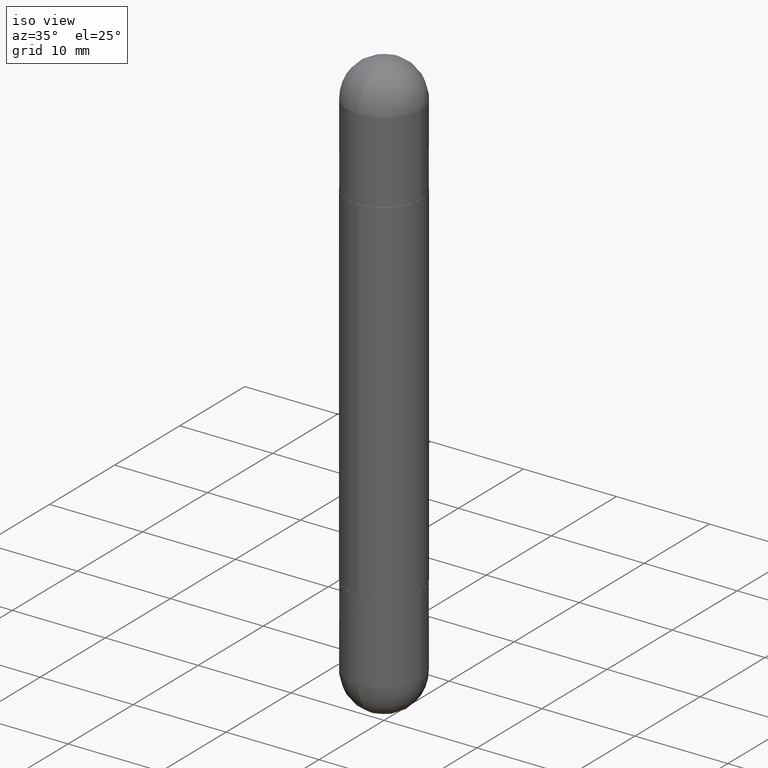
[diagram: clean part render]
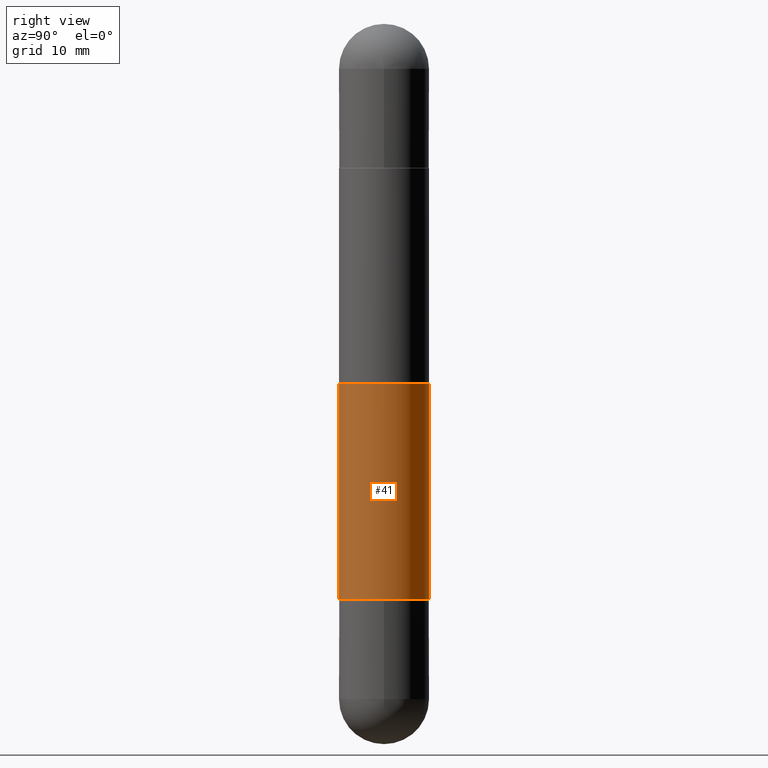
[diagram: tour spotlight — one face highlighted and labeled with its STEP entity id]
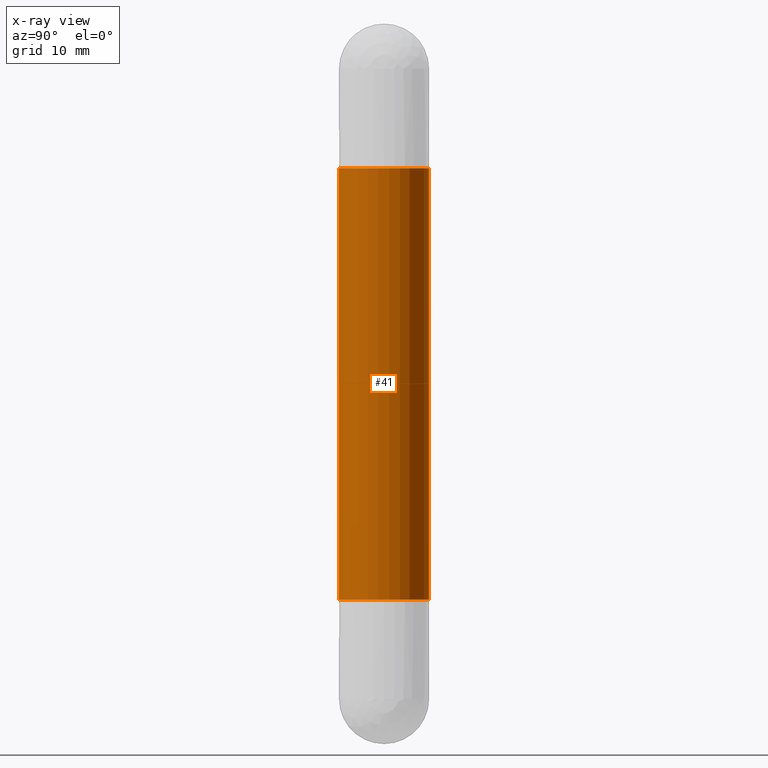
[diagram: x-ray of the same camera — body ghosted, this tour face saturated]
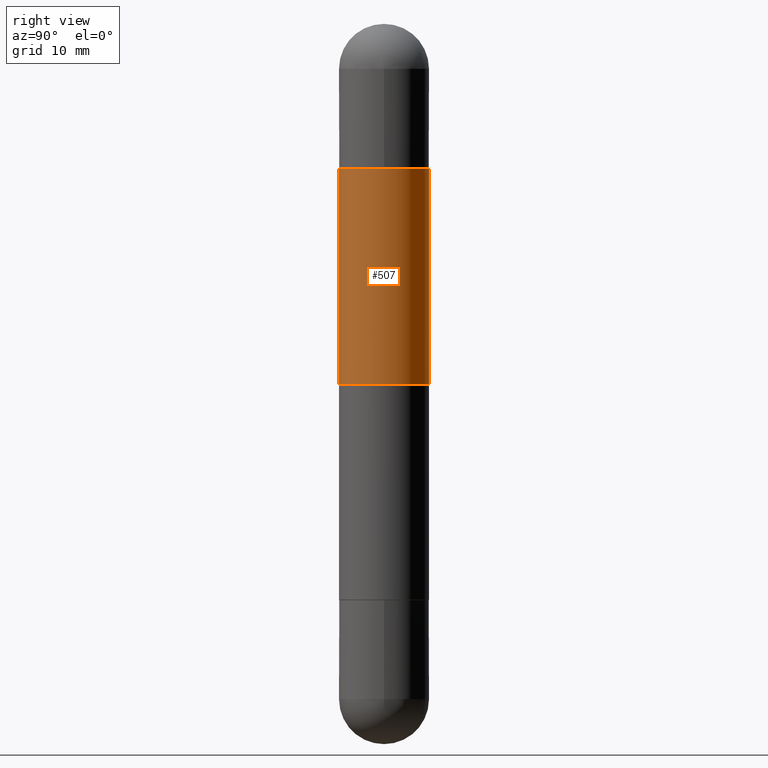
[diagram: tour spotlight — one face highlighted and labeled with its STEP entity id]
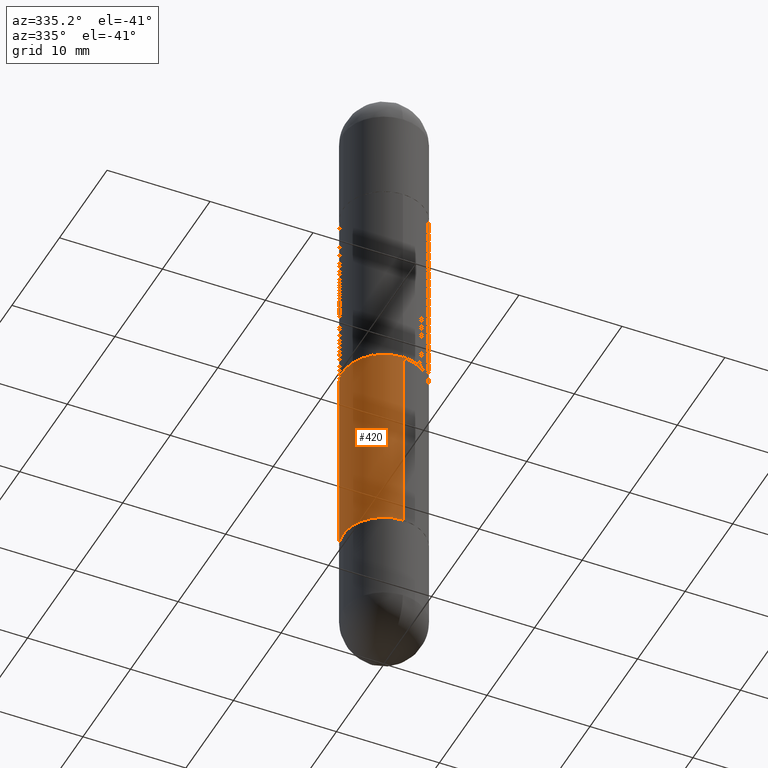
[diagram: tour spotlight — one face highlighted and labeled with its STEP entity id]
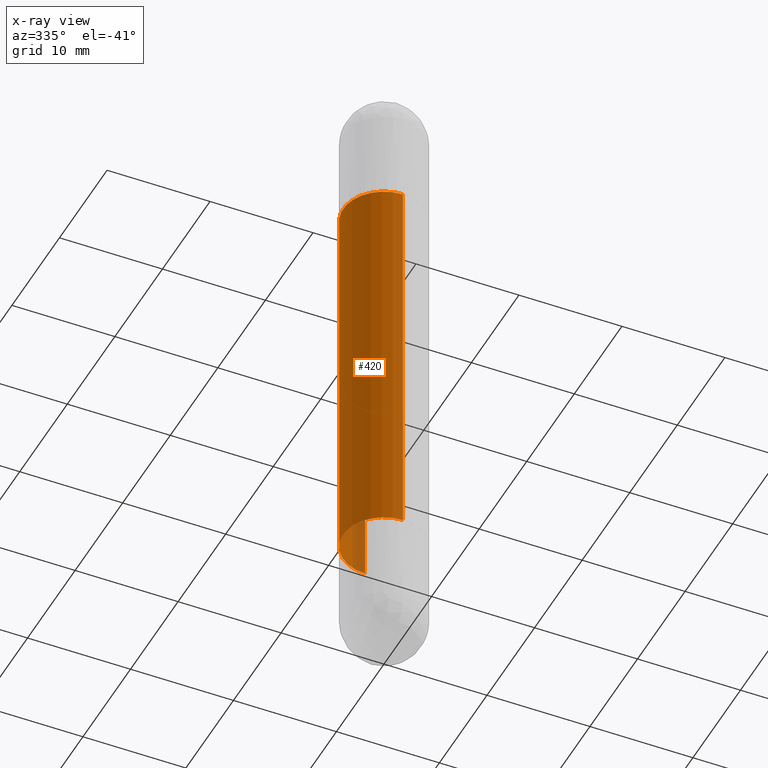
[diagram: x-ray of the same camera — body ghosted, this tour face saturated]
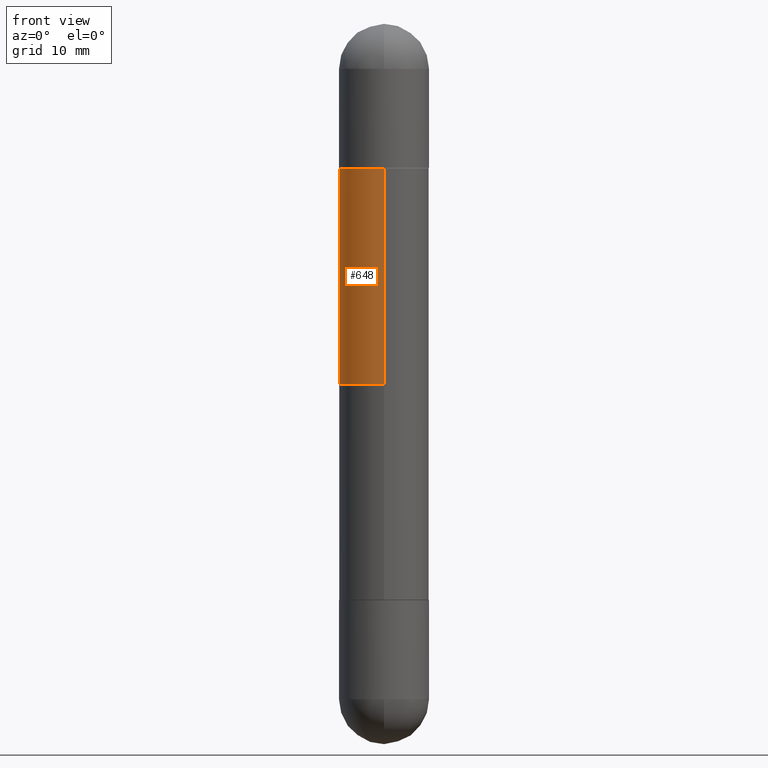
[diagram: tour spotlight — one face highlighted and labeled with its STEP entity id]
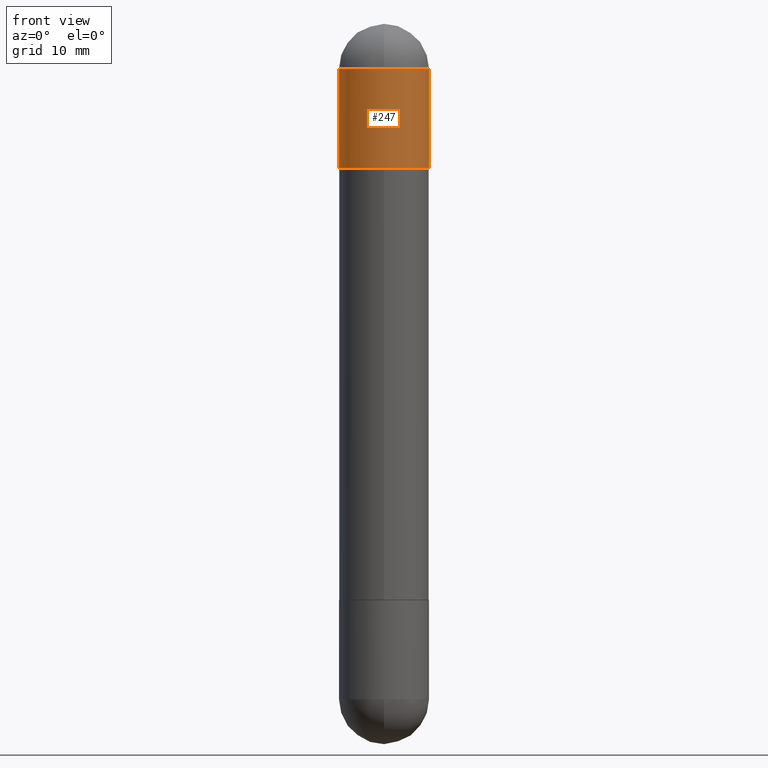
[diagram: tour spotlight — one face highlighted and labeled with its STEP entity id]
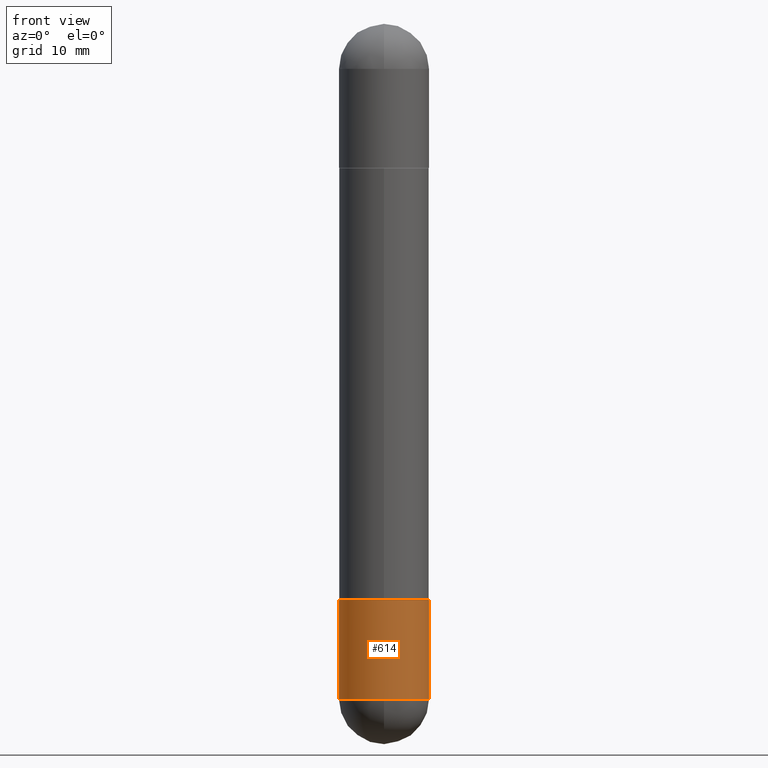
[diagram: tour spotlight — one face highlighted and labeled with its STEP entity id]
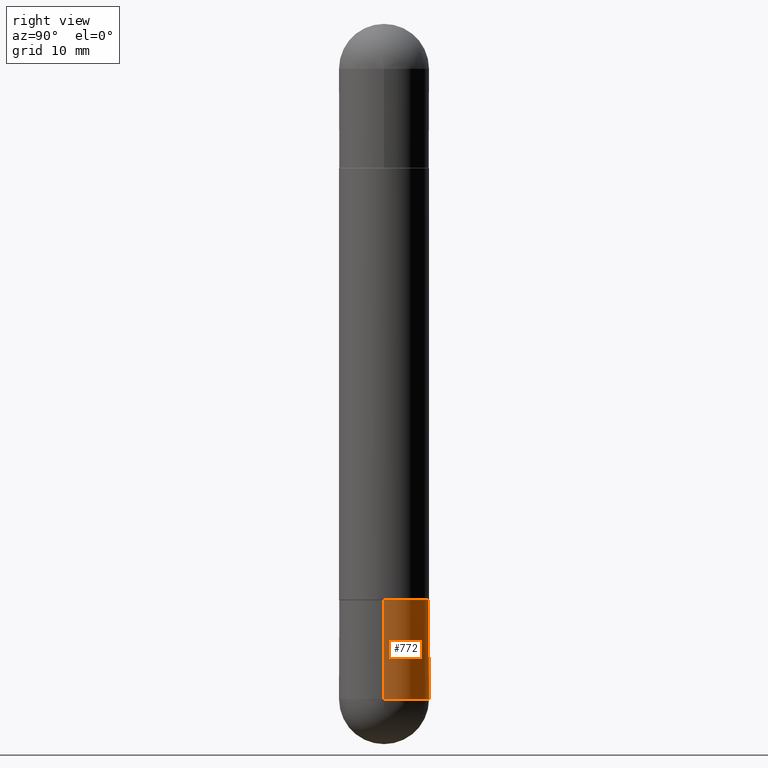
[diagram: tour spotlight — one face highlighted and labeled with its STEP entity id]
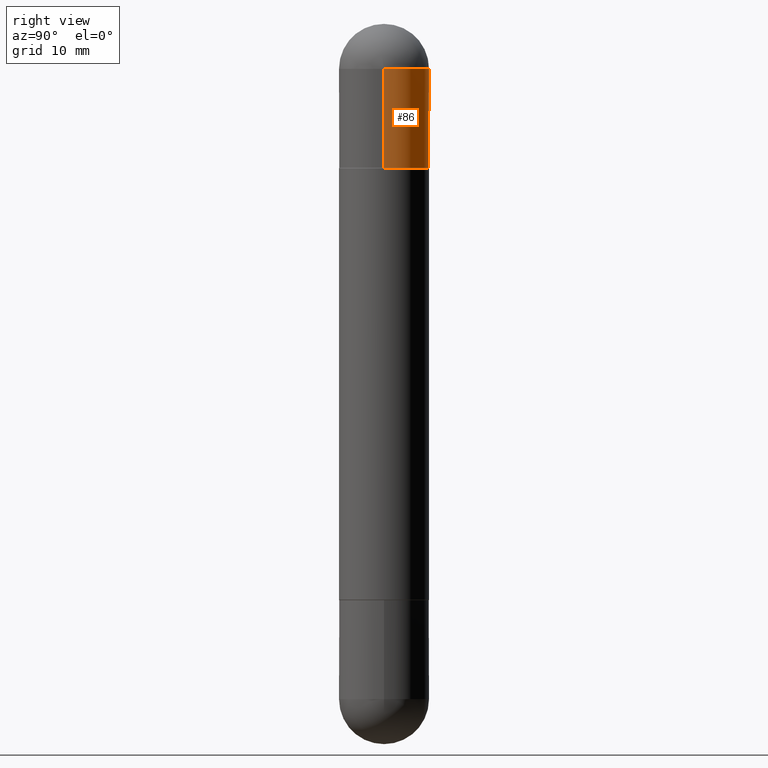
[diagram: tour spotlight — one face highlighted and labeled with its STEP entity id]
A machine part: a face-by-face anatomy tour. The part has 29 B-rep faces; the first image is the clean iso view, then the 8 largest visible faces are spotlighted one at a time (largest first), each with its STEP entity span.

Face 1 — right view, entity #41. An x-ray twin of the same camera follows (body ghosted, this face saturated) — the face is partly hidden behind the body. In plain terms, the highlighted cylindrical surface (partial cylindrical patch) has radius 3.9688 mm, axis along (-0, 0, -1).
Definition (entity closure, byte-faithful):
#41 = ADVANCED_FACE ( 'NONE', ( #670 ), #594, .T. ) ;
#46 = VERTEX_POINT ( 'NONE', #402 ) ;
#57 = ORIENTED_EDGE ( 'NONE', *, *, #788, .F. ) ;
#75 = VECTOR ( 'NONE', #485, 39.37007874015748143 ) ;
#122 = CIRCLE ( 'NONE', #433, 0.1562500000000002776 ) ;
#123 = AXIS2_PLACEMENT_3D ( 'NONE', #394, #787, #531 ) ;
#152 = CARTESIAN_POINT ( 'NONE',  ( 1.071952812151833755E-15, 0.1562499999999933109, -1.999000000000000554 ) ) ;
#157 = ORIENTED_EDGE ( 'NONE', *, *, #468, .T. ) ;
#207 = AXIS2_PLACEMENT_3D ( 'NONE', #269, #276, #733 ) ;
#242 = LINE ( 'NONE', #751, #75 ) ;
#249 = EDGE_LOOP ( 'NONE', ( #632, #57, #157, #797 ) ) ;
#253 = DIRECTION ( 'NONE',  ( -2.446114484898439135E-29, 3.490556690175946618E-15, -1.000000000000000000 ) ) ;
#269 = CARTESIAN_POINT ( 'NONE',  ( 0.000000000000000000, 0.000000000000000000, -2.500000000000000444 ) ) ;
#276 = DIRECTION ( 'NONE',  ( -2.446114484898439135E-29, 3.490556690175946223E-15, -1.000000000000000000 ) ) ;
#311 = LINE ( 'NONE', #770, #342 ) ;
#329 = DIRECTION ( 'NONE',  ( -2.446114484898439135E-29, 3.490556690175946223E-15, 1.000000000000000000 ) ) ;
#342 = VECTOR ( 'NONE', #253, 39.37007874015748143 ) ;
#344 = EDGE_CURVE ( 'NONE', #570, #436, #122, .T. ) ;
#362 = CARTESIAN_POINT ( 'NONE',  ( -1.091087918388432039E-15, -0.1562500000000072442, -1.998999999999999444 ) ) ;
#394 = CARTESIAN_POINT ( 'NONE',  ( 4.889782855311979497E-29, -6.977622823661715870E-15, -0.5010000000000007780 ) ) ;
#398 = DIRECTION ( 'NONE',  ( -6.982962677686265922E-15, -1.000000000000000000, 3.496765431890250609E-15 ) ) ;
#402 = CARTESIAN_POINT ( 'NONE',  ( 1.071952812151852491E-15, 0.1562499999999933109, -0.5010000000000002229 ) ) ;
#433 = AXIS2_PLACEMENT_3D ( 'NONE', #522, #329, #398 ) ;
#436 = VERTEX_POINT ( 'NONE', #152 ) ;
#468 = EDGE_CURVE ( 'NONE', #713, #570, #242, .T. ) ;
#485 = DIRECTION ( 'NONE',  ( -2.446114484898439135E-29, 3.490556690175946618E-15, -1.000000000000000000 ) ) ;
#515 = CIRCLE ( 'NONE', #123, 0.1562500000000002776 ) ;
#522 = CARTESIAN_POINT ( 'NONE',  ( 4.889782855311979497E-29, -6.977622823661715870E-15, -1.998999999999999888 ) ) ;
#531 = DIRECTION ( 'NONE',  ( -6.982962677686265922E-15, -1.000000000000000000, -3.496765431890250609E-15 ) ) ;
#570 = VERTEX_POINT ( 'NONE', #362 ) ;
#594 = CYLINDRICAL_SURFACE ( 'NONE', #207, 0.1562500000000001388 ) ;
#632 = ORIENTED_EDGE ( 'NONE', *, *, #696, .F. ) ;
#670 = FACE_OUTER_BOUND ( 'NONE', #249, .T. ) ;
#696 = EDGE_CURVE ( 'NONE', #46, #436, #311, .T. ) ;
#702 = CARTESIAN_POINT ( 'NONE',  ( -1.091087918388432039E-15, -0.1562500000000072442, -0.5010000000000013332 ) ) ;
#713 = VERTEX_POINT ( 'NONE', #702 ) ;
#733 = DIRECTION ( 'NONE',  ( -6.982962677686265922E-15, -1.000000000000000000, -3.496765431890253764E-15 ) ) ;
#751 = CARTESIAN_POINT ( 'NONE',  ( -1.091087918388479962E-15, -0.1562500000000001388, -2.500000000000001332 ) ) ;
#770 = CARTESIAN_POINT ( 'NONE',  ( 1.071952812151802595E-15, 0.1562500000000001388, -2.500000000000000000 ) ) ;
#787 = DIRECTION ( 'NONE',  ( 2.446114484898439135E-29, -3.490556690175946223E-15, 1.000000000000000000 ) ) ;
#788 = EDGE_CURVE ( 'NONE', #713, #46, #515, .T. ) ;
#797 = ORIENTED_EDGE ( 'NONE', *, *, #344, .T. ) ;

Face 2 — right view, entity #507. In plain terms, the highlighted cylindrical surface (partial cylindrical patch) has radius 3.9688 mm, axis along (-0, 0, -1).
Definition (entity closure, byte-faithful):
#5 = LINE ( 'NONE', #376, #284 ) ;
#14 = DIRECTION ( 'NONE',  ( 2.446114484898439135E-29, -3.490556690175946223E-15, 1.000000000000000000 ) ) ;
#18 = CARTESIAN_POINT ( 'NONE',  ( 1.071952812151852491E-15, 0.1562499999999933109, -0.5010000000000002229 ) ) ;
#23 = ORIENTED_EDGE ( 'NONE', *, *, #729, .F. ) ;
#37 = CIRCLE ( 'NONE', #790, 0.1562500000000001388 ) ;
#54 = LINE ( 'NONE', #168, #816 ) ;
#60 = DIRECTION ( 'NONE',  ( -2.446114484898439135E-29, 3.490556690175946618E-15, -1.000000000000000000 ) ) ;
#71 = VERTEX_POINT ( 'NONE', #805 ) ;
#114 = CARTESIAN_POINT ( 'NONE',  ( -1.091087918388440322E-15, -0.1562500000000045242, -1.250000000000000222 ) ) ;
#126 = DIRECTION ( 'NONE',  ( -0.000000000000000000, -0.000000000000000000, -1.000000000000000000 ) ) ;
#153 = EDGE_CURVE ( 'NONE', #71, #567, #37, .T. ) ;
#168 = CARTESIAN_POINT ( 'NONE',  ( -1.091087918388479962E-15, -0.1562500000000001388, -2.500000000000001332 ) ) ;
#171 = FACE_OUTER_BOUND ( 'NONE', #596, .T. ) ;
#178 = CARTESIAN_POINT ( 'NONE',  ( 0.000000000000000000, 0.000000000000000000, -2.500000000000000444 ) ) ;
#180 = CARTESIAN_POINT ( 'NONE',  ( 3.057643106123049759E-29, -4.363195862719933568E-15, -1.250000000000000222 ) ) ;
#244 = CARTESIAN_POINT ( 'NONE',  ( -1.091087918388432039E-15, -0.1562500000000072442, -0.5010000000000013332 ) ) ;
#284 = VECTOR ( 'NONE', #647, 39.37007874015748143 ) ;
#296 = DIRECTION ( 'NONE',  ( -6.982962677686265922E-15, -1.000000000000000000, -3.496765431890253764E-15 ) ) ;
#376 = CARTESIAN_POINT ( 'NONE',  ( 1.071952812151802595E-15, 0.1562500000000001388, -2.500000000000000000 ) ) ;
#387 = ORIENTED_EDGE ( 'NONE', *, *, #630, .F. ) ;
#447 = AXIS2_PLACEMENT_3D ( 'NONE', #178, #618, #296 ) ;
#449 = DIRECTION ( 'NONE',  ( -6.982962677686265922E-15, -1.000000000000000000, -3.496765431890250609E-15 ) ) ;
#507 = ADVANCED_FACE ( 'NONE', ( #171 ), #817, .T. ) ;
#516 = CIRCLE ( 'NONE', #534, 0.1562500000000002776 ) ;
#518 = EDGE_CURVE ( 'NONE', #736, #567, #54, .T. ) ;
#534 = AXIS2_PLACEMENT_3D ( 'NONE', #573, #14, #449 ) ;
#559 = DIRECTION ( 'NONE',  ( -1.000000000000000000, 0.000000000000000000, 0.000000000000000000 ) ) ;
#567 = VERTEX_POINT ( 'NONE', #114 ) ;
#573 = CARTESIAN_POINT ( 'NONE',  ( 4.889782855311979497E-29, -6.977622823661715870E-15, -0.5010000000000007780 ) ) ;
#596 = EDGE_LOOP ( 'NONE', ( #23, #387, #601, #691 ) ) ;
#601 = ORIENTED_EDGE ( 'NONE', *, *, #518, .T. ) ;
#618 = DIRECTION ( 'NONE',  ( -2.446114484898439135E-29, 3.490556690175946223E-15, -1.000000000000000000 ) ) ;
#630 = EDGE_CURVE ( 'NONE', #736, #734, #516, .T. ) ;
#647 = DIRECTION ( 'NONE',  ( -2.446114484898439135E-29, 3.490556690175946618E-15, -1.000000000000000000 ) ) ;
#691 = ORIENTED_EDGE ( 'NONE', *, *, #153, .F. ) ;
#729 = EDGE_CURVE ( 'NONE', #734, #71, #5, .T. ) ;
#734 = VERTEX_POINT ( 'NONE', #18 ) ;
#736 = VERTEX_POINT ( 'NONE', #244 ) ;
#790 = AXIS2_PLACEMENT_3D ( 'NONE', #180, #126, #559 ) ;
#805 = CARTESIAN_POINT ( 'NONE',  ( 1.071952812151851110E-15, 0.1562499999999957812, -1.250000000000000222 ) ) ;
#816 = VECTOR ( 'NONE', #60, 39.37007874015748143 ) ;
#817 = CYLINDRICAL_SURFACE ( 'NONE', #447, 0.1562500000000001388 ) ;

Face 3 — auxiliary view, entity #420. An x-ray twin of the same camera follows (body ghosted, this face saturated) — the face is partly hidden behind the body. In plain terms, the highlighted cylindrical surface (partial cylindrical patch) has radius 3.9688 mm, axis along (-0, 0, -1).
Definition (entity closure, byte-faithful):
#17 = DIRECTION ( 'NONE',  ( -6.982962677686265922E-15, -1.000000000000000000, -3.496765431890250609E-15 ) ) ;
#46 = VERTEX_POINT ( 'NONE', #402 ) ;
#75 = VECTOR ( 'NONE', #485, 39.37007874015748143 ) ;
#82 = ORIENTED_EDGE ( 'NONE', *, *, #468, .F. ) ;
#83 = DIRECTION ( 'NONE',  ( -6.982962677686265922E-15, -1.000000000000000000, -3.496765431890253764E-15 ) ) ;
#85 = AXIS2_PLACEMENT_3D ( 'NONE', #786, #650, #83 ) ;
#147 = AXIS2_PLACEMENT_3D ( 'NONE', #256, #569, #17 ) ;
#152 = CARTESIAN_POINT ( 'NONE',  ( 1.071952812151833755E-15, 0.1562499999999933109, -1.999000000000000554 ) ) ;
#166 = ORIENTED_EDGE ( 'NONE', *, *, #310, .T. ) ;
#225 = ORIENTED_EDGE ( 'NONE', *, *, #696, .T. ) ;
#242 = LINE ( 'NONE', #751, #75 ) ;
#253 = DIRECTION ( 'NONE',  ( -2.446114484898439135E-29, 3.490556690175946618E-15, -1.000000000000000000 ) ) ;
#256 = CARTESIAN_POINT ( 'NONE',  ( 4.889782855311979497E-29, -6.977622823661715870E-15, -0.5010000000000007780 ) ) ;
#266 = CYLINDRICAL_SURFACE ( 'NONE', #85, 0.1562500000000001388 ) ;
#310 = EDGE_CURVE ( 'NONE', #436, #570, #341, .T. ) ;
#311 = LINE ( 'NONE', #770, #342 ) ;
#321 = FACE_OUTER_BOUND ( 'NONE', #757, .T. ) ;
#341 = CIRCLE ( 'NONE', #549, 0.1562500000000002776 ) ;
#342 = VECTOR ( 'NONE', #253, 39.37007874015748143 ) ;
#362 = CARTESIAN_POINT ( 'NONE',  ( -1.091087918388432039E-15, -0.1562500000000072442, -1.998999999999999444 ) ) ;
#402 = CARTESIAN_POINT ( 'NONE',  ( 1.071952812151852491E-15, 0.1562499999999933109, -0.5010000000000002229 ) ) ;
#407 = CIRCLE ( 'NONE', #147, 0.1562500000000002776 ) ;
#420 = ADVANCED_FACE ( 'NONE', ( #321 ), #266, .T. ) ;
#436 = VERTEX_POINT ( 'NONE', #152 ) ;
#440 = EDGE_CURVE ( 'NONE', #46, #713, #407, .T. ) ;
#446 = ORIENTED_EDGE ( 'NONE', *, *, #440, .F. ) ;
#468 = EDGE_CURVE ( 'NONE', #713, #570, #242, .T. ) ;
#485 = DIRECTION ( 'NONE',  ( -2.446114484898439135E-29, 3.490556690175946618E-15, -1.000000000000000000 ) ) ;
#509 = DIRECTION ( 'NONE',  ( -6.982962677686265922E-15, -1.000000000000000000, 3.496765431890250609E-15 ) ) ;
#519 = CARTESIAN_POINT ( 'NONE',  ( 4.889782855311979497E-29, -6.977622823661715870E-15, -1.998999999999999888 ) ) ;
#549 = AXIS2_PLACEMENT_3D ( 'NONE', #519, #773, #509 ) ;
#569 = DIRECTION ( 'NONE',  ( 2.446114484898439135E-29, -3.490556690175946223E-15, 1.000000000000000000 ) ) ;
#570 = VERTEX_POINT ( 'NONE', #362 ) ;
#650 = DIRECTION ( 'NONE',  ( -2.446114484898439135E-29, 3.490556690175946223E-15, -1.000000000000000000 ) ) ;
#696 = EDGE_CURVE ( 'NONE', #46, #436, #311, .T. ) ;
#702 = CARTESIAN_POINT ( 'NONE',  ( -1.091087918388432039E-15, -0.1562500000000072442, -0.5010000000000013332 ) ) ;
#713 = VERTEX_POINT ( 'NONE', #702 ) ;
#751 = CARTESIAN_POINT ( 'NONE',  ( -1.091087918388479962E-15, -0.1562500000000001388, -2.500000000000001332 ) ) ;
#757 = EDGE_LOOP ( 'NONE', ( #446, #225, #166, #82 ) ) ;
#770 = CARTESIAN_POINT ( 'NONE',  ( 1.071952812151802595E-15, 0.1562500000000001388, -2.500000000000000000 ) ) ;
#773 = DIRECTION ( 'NONE',  ( -2.446114484898439135E-29, 3.490556690175946223E-15, 1.000000000000000000 ) ) ;
#786 = CARTESIAN_POINT ( 'NONE',  ( 0.000000000000000000, 0.000000000000000000, -2.500000000000000444 ) ) ;

Face 4 — front view, entity #648. In plain terms, the highlighted cylindrical surface (partial cylindrical patch) has radius 3.9688 mm, axis along (-0, 0, -1).
Definition (entity closure, byte-faithful):
#5 = LINE ( 'NONE', #376, #284 ) ;
#18 = CARTESIAN_POINT ( 'NONE',  ( 1.071952812151852491E-15, 0.1562499999999933109, -0.5010000000000002229 ) ) ;
#22 = AXIS2_PLACEMENT_3D ( 'NONE', #120, #638, #562 ) ;
#38 = CIRCLE ( 'NONE', #135, 0.1562500000000001388 ) ;
#49 = CARTESIAN_POINT ( 'NONE',  ( 3.057643106123049759E-29, -4.363195862719933568E-15, -1.250000000000000222 ) ) ;
#54 = LINE ( 'NONE', #168, #816 ) ;
#60 = DIRECTION ( 'NONE',  ( -2.446114484898439135E-29, 3.490556690175946618E-15, -1.000000000000000000 ) ) ;
#66 = FACE_OUTER_BOUND ( 'NONE', #383, .T. ) ;
#71 = VERTEX_POINT ( 'NONE', #805 ) ;
#73 = DIRECTION ( 'NONE',  ( -6.982962677686265922E-15, -1.000000000000000000, -3.496765431890253764E-15 ) ) ;
#108 = ORIENTED_EDGE ( 'NONE', *, *, #518, .F. ) ;
#114 = CARTESIAN_POINT ( 'NONE',  ( -1.091087918388440322E-15, -0.1562500000000045242, -1.250000000000000222 ) ) ;
#120 = CARTESIAN_POINT ( 'NONE',  ( 4.889782855311979497E-29, -6.977622823661715870E-15, -0.5010000000000007780 ) ) ;
#135 = AXIS2_PLACEMENT_3D ( 'NONE', #49, #611, #227 ) ;
#139 = CYLINDRICAL_SURFACE ( 'NONE', #186, 0.1562500000000001388 ) ;
#168 = CARTESIAN_POINT ( 'NONE',  ( -1.091087918388479962E-15, -0.1562500000000001388, -2.500000000000001332 ) ) ;
#186 = AXIS2_PLACEMENT_3D ( 'NONE', #715, #200, #73 ) ;
#200 = DIRECTION ( 'NONE',  ( -2.446114484898439135E-29, 3.490556690175946223E-15, -1.000000000000000000 ) ) ;
#221 = EDGE_CURVE ( 'NONE', #734, #736, #459, .T. ) ;
#227 = DIRECTION ( 'NONE',  ( -1.000000000000000000, 0.000000000000000000, 0.000000000000000000 ) ) ;
#244 = CARTESIAN_POINT ( 'NONE',  ( -1.091087918388432039E-15, -0.1562500000000072442, -0.5010000000000013332 ) ) ;
#284 = VECTOR ( 'NONE', #647, 39.37007874015748143 ) ;
#330 = ORIENTED_EDGE ( 'NONE', *, *, #221, .F. ) ;
#376 = CARTESIAN_POINT ( 'NONE',  ( 1.071952812151802595E-15, 0.1562500000000001388, -2.500000000000000000 ) ) ;
#383 = EDGE_LOOP ( 'NONE', ( #330, #574, #624, #108 ) ) ;
#459 = CIRCLE ( 'NONE', #22, 0.1562500000000002776 ) ;
#494 = EDGE_CURVE ( 'NONE', #567, #71, #38, .T. ) ;
#518 = EDGE_CURVE ( 'NONE', #736, #567, #54, .T. ) ;
#562 = DIRECTION ( 'NONE',  ( -6.982962677686265922E-15, -1.000000000000000000, -3.496765431890250609E-15 ) ) ;
#567 = VERTEX_POINT ( 'NONE', #114 ) ;
#574 = ORIENTED_EDGE ( 'NONE', *, *, #729, .T. ) ;
#611 = DIRECTION ( 'NONE',  ( -0.000000000000000000, -0.000000000000000000, -1.000000000000000000 ) ) ;
#624 = ORIENTED_EDGE ( 'NONE', *, *, #494, .F. ) ;
#638 = DIRECTION ( 'NONE',  ( 2.446114484898439135E-29, -3.490556690175946223E-15, 1.000000000000000000 ) ) ;
#647 = DIRECTION ( 'NONE',  ( -2.446114484898439135E-29, 3.490556690175946618E-15, -1.000000000000000000 ) ) ;
#648 = ADVANCED_FACE ( 'NONE', ( #66 ), #139, .T. ) ;
#715 = CARTESIAN_POINT ( 'NONE',  ( 0.000000000000000000, 0.000000000000000000, -2.500000000000000444 ) ) ;
#729 = EDGE_CURVE ( 'NONE', #734, #71, #5, .T. ) ;
#734 = VERTEX_POINT ( 'NONE', #18 ) ;
#736 = VERTEX_POINT ( 'NONE', #244 ) ;
#805 = CARTESIAN_POINT ( 'NONE',  ( 1.071952812151851110E-15, 0.1562499999999957812, -1.250000000000000222 ) ) ;
#816 = VECTOR ( 'NONE', #60, 39.37007874015748143 ) ;

Face 5 — front view, entity #247. In plain terms, the highlighted cylindrical surface (partial cylindrical patch) has radius 3.9688 mm, axis along (-0, 0, -1).
Definition (entity closure, byte-faithful):
#10 = CIRCLE ( 'NONE', #246, 0.1562500000000000000 ) ;
#13 = DIRECTION ( 'NONE',  ( -2.445468806185136597E-29, 3.491481338843145583E-15, -1.000000000000000000 ) ) ;
#28 = EDGE_CURVE ( 'NONE', #31, #215, #513, .T. ) ;
#31 = VERTEX_POINT ( 'NONE', #339 ) ;
#52 = EDGE_CURVE ( 'NONE', #608, #31, #267, .T. ) ;
#64 = DIRECTION ( 'NONE',  ( 1.000000000000000000, -6.982962677686266711E-15, 0.000000000000000000 ) ) ;
#72 = CYLINDRICAL_SURFACE ( 'NONE', #473, 0.1562500000000000000 ) ;
#81 = CARTESIAN_POINT ( 'NONE',  ( -0.1562500000000000000, -6.511108220648156257E-15, -0.1562500000000005551 ) ) ;
#116 = CARTESIAN_POINT ( 'NONE',  ( 0.1562500000000000000, -8.074050596074770339E-15, -0.5000000000000006661 ) ) ;
#137 = DIRECTION ( 'NONE',  ( 2.445468806185136597E-29, -3.491481338843145583E-15, 1.000000000000000000 ) ) ;
#198 = DIRECTION ( 'NONE',  ( 1.000000000000000000, -6.982962677686262766E-15, 0.000000000000000000 ) ) ;
#201 = VERTEX_POINT ( 'NONE', #243 ) ;
#204 = LINE ( 'NONE', #661, #514 ) ;
#205 = EDGE_CURVE ( 'NONE', #608, #201, #10, .T. ) ;
#215 = VERTEX_POINT ( 'NONE', #116 ) ;
#233 = VERTEX_POINT ( 'NONE', #550 ) ;
#243 = CARTESIAN_POINT ( 'NONE',  ( -1.071952812151746981E-15, -0.1562500000000085487, -0.1562500000000011102 ) ) ;
#246 = AXIS2_PLACEMENT_3D ( 'NONE', #375, #633, #505 ) ;
#247 = ADVANCED_FACE ( 'NONE', ( #441 ), #72, .T. ) ;
#267 = LINE ( 'NONE', #465, #804 ) ;
#272 = AXIS2_PLACEMENT_3D ( 'NONE', #789, #137, #198 ) ;
#292 = EDGE_CURVE ( 'NONE', #201, #233, #725, .T. ) ;
#307 = ORIENTED_EDGE ( 'NONE', *, *, #360, .F. ) ;
#339 = CARTESIAN_POINT ( 'NONE',  ( -0.1562500000000000000, -6.511108220648155468E-15, -0.5000000000000006661 ) ) ;
#360 = EDGE_CURVE ( 'NONE', #233, #215, #204, .T. ) ;
#375 = CARTESIAN_POINT ( 'NONE',  ( 5.731567514496413899E-29, -8.183159387913622595E-15, -0.1562500000000005551 ) ) ;
#428 = ORIENTED_EDGE ( 'NONE', *, *, #28, .T. ) ;
#441 = FACE_OUTER_BOUND ( 'NONE', #554, .T. ) ;
#462 = DIRECTION ( 'NONE',  ( -2.445468806185136877E-29, 3.491481338843145188E-15, -1.000000000000000000 ) ) ;
#463 = CARTESIAN_POINT ( 'NONE',  ( 4.890937612370273194E-29, -6.982962677686291165E-15, -0.5000000000000006661 ) ) ;
#465 = CARTESIAN_POINT ( 'NONE',  ( -0.1562500000000000000, 1.071952812151801807E-15, -2.500000000000000444 ) ) ;
#473 = AXIS2_PLACEMENT_3D ( 'NONE', #623, #13, #64 ) ;
#486 = ORIENTED_EDGE ( 'NONE', *, *, #52, .T. ) ;
#505 = DIRECTION ( 'NONE',  ( 1.000000000000000000, -6.982962677686262766E-15, 0.000000000000000000 ) ) ;
#513 = CIRCLE ( 'NONE', #637, 0.1562500000000000000 ) ;
#514 = VECTOR ( 'NONE', #779, 39.37007874015748143 ) ;
#550 = CARTESIAN_POINT ( 'NONE',  ( 0.1562500000000000000, -8.674148951188436448E-15, -0.1562500000000005551 ) ) ;
#554 = EDGE_LOOP ( 'NONE', ( #722, #486, #428, #307, #743 ) ) ;
#591 = DIRECTION ( 'NONE',  ( 2.445468806185136597E-29, -3.491481338843145583E-15, 1.000000000000000000 ) ) ;
#608 = VERTEX_POINT ( 'NONE', #81 ) ;
#623 = CARTESIAN_POINT ( 'NONE',  ( 0.000000000000000000, 0.000000000000000000, -2.500000000000000444 ) ) ;
#633 = DIRECTION ( 'NONE',  ( 2.445468806185136597E-29, -3.491481338843145583E-15, 1.000000000000000000 ) ) ;
#637 = AXIS2_PLACEMENT_3D ( 'NONE', #463, #591, #794 ) ;
#661 = CARTESIAN_POINT ( 'NONE',  ( 0.1562500000000000000, -1.091087918388479174E-15, -2.500000000000000444 ) ) ;
#722 = ORIENTED_EDGE ( 'NONE', *, *, #205, .F. ) ;
#725 = CIRCLE ( 'NONE', #272, 0.1562500000000000000 ) ;
#743 = ORIENTED_EDGE ( 'NONE', *, *, #292, .F. ) ;
#779 = DIRECTION ( 'NONE',  ( -2.445468806185136877E-29, 3.491481338843145188E-15, -1.000000000000000000 ) ) ;
#789 = CARTESIAN_POINT ( 'NONE',  ( 5.731567514496413899E-29, -8.183159387913622595E-15, -0.1562500000000005551 ) ) ;
#794 = DIRECTION ( 'NONE',  ( 1.000000000000000000, -6.982962677686269077E-15, 0.000000000000000000 ) ) ;
#804 = VECTOR ( 'NONE', #462, 39.37007874015748143 ) ;

Face 6 — front view, entity #614. In plain terms, the highlighted cylindrical surface (partial cylindrical patch) has radius 3.9688 mm, axis along (-0, 0, 1).
Definition (entity closure, byte-faithful):
#36 = CARTESIAN_POINT ( 'NONE',  ( -1.110223024625101517E-15, -0.1562500000000085487, -2.343749999999999556 ) ) ;
#43 = ORIENTED_EDGE ( 'NONE', *, *, #199, .F. ) ;
#45 = VERTEX_POINT ( 'NONE', #150 ) ;
#48 = CIRCLE ( 'NONE', #640, 0.1562500000000000000 ) ;
#58 = CARTESIAN_POINT ( 'NONE',  ( -0.1562500000000000000, -6.472838008174800734E-15, -2.343750000000000000 ) ) ;
#68 = LINE ( 'NONE', #493, #283 ) ;
#93 = EDGE_CURVE ( 'NONE', #236, #521, #546, .T. ) ;
#97 = VECTOR ( 'NONE', #510, 39.37007874015748143 ) ;
#99 = DIRECTION ( 'NONE',  ( -2.445468806185136597E-29, 3.491481338843145583E-15, 1.000000000000000000 ) ) ;
#136 = CIRCLE ( 'NONE', #475, 0.1562500000000000000 ) ;
#150 = CARTESIAN_POINT ( 'NONE',  ( 0.1562500000000000000, -8.674148951188436448E-15, -2.343750000000000000 ) ) ;
#187 = DIRECTION ( 'NONE',  ( -2.445468806185136597E-29, 3.491481338843145583E-15, 1.000000000000000000 ) ) ;
#193 = CARTESIAN_POINT ( 'NONE',  ( 0.1562500000000000000, -1.091087918388479174E-15, 7.619026212181150377E-30 ) ) ;
#199 = EDGE_CURVE ( 'NONE', #291, #236, #68, .T. ) ;
#236 = VERTEX_POINT ( 'NONE', #501 ) ;
#283 = VECTOR ( 'NONE', #373, 39.37007874015748143 ) ;
#291 = VERTEX_POINT ( 'NONE', #58 ) ;
#320 = ORIENTED_EDGE ( 'NONE', *, *, #93, .F. ) ;
#337 = DIRECTION ( 'NONE',  ( 1.000000000000000000, -6.982962677686262766E-15, 0.000000000000000000 ) ) ;
#351 = DIRECTION ( 'NONE',  ( 1.000000000000000000, -6.982962677686269077E-15, 0.000000000000000000 ) ) ;
#373 = DIRECTION ( 'NONE',  ( -2.445468806185136877E-29, 3.491481338843145188E-15, 1.000000000000000000 ) ) ;
#381 = FACE_OUTER_BOUND ( 'NONE', #778, .T. ) ;
#392 = AXIS2_PLACEMENT_3D ( 'NONE', #673, #99, #351 ) ;
#431 = DIRECTION ( 'NONE',  ( -2.445468806185136597E-29, 3.491481338843145583E-15, 1.000000000000000000 ) ) ;
#435 = CARTESIAN_POINT ( 'NONE',  ( 0.000000000000000000, 0.000000000000000000, 0.000000000000000000 ) ) ;
#467 = DIRECTION ( 'NONE',  ( 1.000000000000000000, -6.982962677686262766E-15, 0.000000000000000000 ) ) ;
#475 = AXIS2_PLACEMENT_3D ( 'NONE', #759, #431, #337 ) ;
#476 = VERTEX_POINT ( 'NONE', #36 ) ;
#493 = CARTESIAN_POINT ( 'NONE',  ( -0.1562500000000000000, 1.110223024625156540E-15, -7.685836078523291160E-30 ) ) ;
#501 = CARTESIAN_POINT ( 'NONE',  ( -0.1562500000000000000, -6.472838008174799945E-15, -2.000000000000000000 ) ) ;
#510 = DIRECTION ( 'NONE',  ( -2.445468806185136877E-29, 3.491481338843145188E-15, 1.000000000000000000 ) ) ;
#521 = VERTEX_POINT ( 'NONE', #542 ) ;
#542 = CARTESIAN_POINT ( 'NONE',  ( 0.1562500000000000000, -8.074050596074770339E-15, -2.000000000000000000 ) ) ;
#546 = CIRCLE ( 'NONE', #392, 0.1562500000000000000 ) ;
#568 = ORIENTED_EDGE ( 'NONE', *, *, #739, .T. ) ;
#587 = EDGE_CURVE ( 'NONE', #476, #45, #136, .T. ) ;
#614 = ADVANCED_FACE ( 'NONE', ( #381 ), #699, .T. ) ;
#622 = AXIS2_PLACEMENT_3D ( 'NONE', #435, #187, #783 ) ;
#636 = LINE ( 'NONE', #193, #97 ) ;
#640 = AXIS2_PLACEMENT_3D ( 'NONE', #801, #735, #467 ) ;
#673 = CARTESIAN_POINT ( 'NONE',  ( 4.890937612370273194E-29, -6.982962677686291165E-15, -2.000000000000000000 ) ) ;
#675 = ORIENTED_EDGE ( 'NONE', *, *, #761, .T. ) ;
#699 = CYLINDRICAL_SURFACE ( 'NONE', #622, 0.1562500000000000000 ) ;
#735 = DIRECTION ( 'NONE',  ( -2.445468806185136597E-29, 3.491481338843145583E-15, 1.000000000000000000 ) ) ;
#739 = EDGE_CURVE ( 'NONE', #45, #521, #636, .T. ) ;
#749 = ORIENTED_EDGE ( 'NONE', *, *, #587, .T. ) ;
#759 = CARTESIAN_POINT ( 'NONE',  ( 5.731567514496413899E-29, -8.183159387913622595E-15, -2.343750000000000000 ) ) ;
#761 = EDGE_CURVE ( 'NONE', #291, #476, #48, .T. ) ;
#778 = EDGE_LOOP ( 'NONE', ( #43, #675, #749, #568, #320 ) ) ;
#783 = DIRECTION ( 'NONE',  ( 1.000000000000000000, -6.982962677686266711E-15, 4.876176775795936353E-29 ) ) ;
#801 = CARTESIAN_POINT ( 'NONE',  ( 5.731567514496413899E-29, -8.183159387913622595E-15, -2.343750000000000000 ) ) ;

Face 7 — right view, entity #772. In plain terms, the highlighted cylindrical surface (partial cylindrical patch) has radius 3.9688 mm, axis along (-0, 0, 1).
Definition (entity closure, byte-faithful):
#7 = DIRECTION ( 'NONE',  ( 1.000000000000000000, -6.982962677686262766E-15, 0.000000000000000000 ) ) ;
#11 = ORIENTED_EDGE ( 'NONE', *, *, #199, .T. ) ;
#24 = CARTESIAN_POINT ( 'NONE',  ( 4.890937612370273194E-29, -6.982962677686291165E-15, -2.000000000000000000 ) ) ;
#27 = DIRECTION ( 'NONE',  ( 1.000000000000000000, -6.982962677686269077E-15, 0.000000000000000000 ) ) ;
#30 = DIRECTION ( 'NONE',  ( 1.000000000000000000, -6.982962677686266711E-15, 4.876176775795936353E-29 ) ) ;
#45 = VERTEX_POINT ( 'NONE', #150 ) ;
#58 = CARTESIAN_POINT ( 'NONE',  ( -0.1562500000000000000, -6.472838008174800734E-15, -2.343750000000000000 ) ) ;
#68 = LINE ( 'NONE', #493, #283 ) ;
#77 = DIRECTION ( 'NONE',  ( -2.445468806185136597E-29, 3.491481338843145583E-15, 1.000000000000000000 ) ) ;
#97 = VECTOR ( 'NONE', #510, 39.37007874015748143 ) ;
#129 = CARTESIAN_POINT ( 'NONE',  ( 5.731567514496413899E-29, -8.183159387913622595E-15, -2.343750000000000000 ) ) ;
#131 = CARTESIAN_POINT ( 'NONE',  ( 5.731567514496413899E-29, -8.183159387913622595E-15, -2.343750000000000000 ) ) ;
#134 = AXIS2_PLACEMENT_3D ( 'NONE', #129, #188, #7 ) ;
#142 = EDGE_CURVE ( 'NONE', #45, #287, #724, .T. ) ;
#150 = CARTESIAN_POINT ( 'NONE',  ( 0.1562500000000000000, -8.674148951188436448E-15, -2.343750000000000000 ) ) ;
#162 = AXIS2_PLACEMENT_3D ( 'NONE', #24, #730, #27 ) ;
#188 = DIRECTION ( 'NONE',  ( -2.445468806185136597E-29, 3.491481338843145583E-15, 1.000000000000000000 ) ) ;
#193 = CARTESIAN_POINT ( 'NONE',  ( 0.1562500000000000000, -1.091087918388479174E-15, 7.619026212181150377E-30 ) ) ;
#199 = EDGE_CURVE ( 'NONE', #291, #236, #68, .T. ) ;
#210 = DIRECTION ( 'NONE',  ( -2.445468806185136597E-29, 3.491481338843145583E-15, 1.000000000000000000 ) ) ;
#236 = VERTEX_POINT ( 'NONE', #501 ) ;
#263 = EDGE_CURVE ( 'NONE', #287, #291, #563, .T. ) ;
#283 = VECTOR ( 'NONE', #373, 39.37007874015748143 ) ;
#287 = VERTEX_POINT ( 'NONE', #815 ) ;
#291 = VERTEX_POINT ( 'NONE', #58 ) ;
#294 = ORIENTED_EDGE ( 'NONE', *, *, #404, .F. ) ;
#316 = DIRECTION ( 'NONE',  ( 1.000000000000000000, -6.982962677686262766E-15, 0.000000000000000000 ) ) ;
#343 = CARTESIAN_POINT ( 'NONE',  ( 0.000000000000000000, 0.000000000000000000, 0.000000000000000000 ) ) ;
#373 = DIRECTION ( 'NONE',  ( -2.445468806185136877E-29, 3.491481338843145188E-15, 1.000000000000000000 ) ) ;
#404 = EDGE_CURVE ( 'NONE', #521, #236, #408, .T. ) ;
#408 = CIRCLE ( 'NONE', #162, 0.1562500000000000000 ) ;
#493 = CARTESIAN_POINT ( 'NONE',  ( -0.1562500000000000000, 1.110223024625156540E-15, -7.685836078523291160E-30 ) ) ;
#501 = CARTESIAN_POINT ( 'NONE',  ( -0.1562500000000000000, -6.472838008174799945E-15, -2.000000000000000000 ) ) ;
#510 = DIRECTION ( 'NONE',  ( -2.445468806185136877E-29, 3.491481338843145188E-15, 1.000000000000000000 ) ) ;
#521 = VERTEX_POINT ( 'NONE', #542 ) ;
#542 = CARTESIAN_POINT ( 'NONE',  ( 0.1562500000000000000, -8.074050596074770339E-15, -2.000000000000000000 ) ) ;
#543 = EDGE_LOOP ( 'NONE', ( #607, #11, #294, #612, #705 ) ) ;
#563 = CIRCLE ( 'NONE', #710, 0.1562500000000000000 ) ;
#607 = ORIENTED_EDGE ( 'NONE', *, *, #263, .T. ) ;
#612 = ORIENTED_EDGE ( 'NONE', *, *, #739, .F. ) ;
#636 = LINE ( 'NONE', #193, #97 ) ;
#652 = FACE_OUTER_BOUND ( 'NONE', #543, .T. ) ;
#705 = ORIENTED_EDGE ( 'NONE', *, *, #142, .T. ) ;
#710 = AXIS2_PLACEMENT_3D ( 'NONE', #131, #77, #316 ) ;
#724 = CIRCLE ( 'NONE', #134, 0.1562500000000000000 ) ;
#728 = CYLINDRICAL_SURFACE ( 'NONE', #740, 0.1562500000000000000 ) ;
#730 = DIRECTION ( 'NONE',  ( -2.445468806185136597E-29, 3.491481338843145583E-15, 1.000000000000000000 ) ) ;
#739 = EDGE_CURVE ( 'NONE', #45, #521, #636, .T. ) ;
#740 = AXIS2_PLACEMENT_3D ( 'NONE', #343, #210, #30 ) ;
#772 = ADVANCED_FACE ( 'NONE', ( #652 ), #728, .T. ) ;
#815 = CARTESIAN_POINT ( 'NONE',  ( 1.091087918388535577E-15, 0.1562499999999916733, -2.343750000000000444 ) ) ;

Face 8 — right view, entity #86. In plain terms, the highlighted cylindrical surface (partial cylindrical patch) has radius 3.9688 mm, axis along (-0, 0, -1).
Definition (entity closure, byte-faithful):
#31 = VERTEX_POINT ( 'NONE', #339 ) ;
#52 = EDGE_CURVE ( 'NONE', #608, #31, #267, .T. ) ;
#81 = CARTESIAN_POINT ( 'NONE',  ( -0.1562500000000000000, -6.511108220648156257E-15, -0.1562500000000005551 ) ) ;
#86 = ADVANCED_FACE ( 'NONE', ( #169 ), #540, .T. ) ;
#87 = DIRECTION ( 'NONE',  ( 1.000000000000000000, -6.982962677686269077E-15, 0.000000000000000000 ) ) ;
#104 = DIRECTION ( 'NONE',  ( 1.000000000000000000, -6.982962677686266711E-15, 0.000000000000000000 ) ) ;
#111 = EDGE_LOOP ( 'NONE', ( #649, #258, #112, #305, #128 ) ) ;
#112 = ORIENTED_EDGE ( 'NONE', *, *, #533, .F. ) ;
#116 = CARTESIAN_POINT ( 'NONE',  ( 0.1562500000000000000, -8.074050596074770339E-15, -0.5000000000000006661 ) ) ;
#128 = ORIENTED_EDGE ( 'NONE', *, *, #335, .T. ) ;
#169 = FACE_OUTER_BOUND ( 'NONE', #111, .T. ) ;
#192 = CARTESIAN_POINT ( 'NONE',  ( 5.731567514496413899E-29, -8.183159387913622595E-15, -0.1562500000000005551 ) ) ;
#194 = DIRECTION ( 'NONE',  ( 2.445468806185136597E-29, -3.491481338843145583E-15, 1.000000000000000000 ) ) ;
#204 = LINE ( 'NONE', #661, #514 ) ;
#215 = VERTEX_POINT ( 'NONE', #116 ) ;
#223 = DIRECTION ( 'NONE',  ( -2.445468806185136597E-29, 3.491481338843145583E-15, -1.000000000000000000 ) ) ;
#228 = CARTESIAN_POINT ( 'NONE',  ( 0.000000000000000000, 0.000000000000000000, -2.500000000000000444 ) ) ;
#232 = CARTESIAN_POINT ( 'NONE',  ( 5.731567514496413899E-29, -8.183159387913622595E-15, -0.1562500000000005551 ) ) ;
#233 = VERTEX_POINT ( 'NONE', #550 ) ;
#237 = CIRCLE ( 'NONE', #750, 0.1562500000000000000 ) ;
#255 = EDGE_CURVE ( 'NONE', #359, #608, #237, .T. ) ;
#258 = ORIENTED_EDGE ( 'NONE', *, *, #255, .F. ) ;
#260 = AXIS2_PLACEMENT_3D ( 'NONE', #232, #545, #747 ) ;
#267 = LINE ( 'NONE', #465, #804 ) ;
#305 = ORIENTED_EDGE ( 'NONE', *, *, #360, .T. ) ;
#306 = DIRECTION ( 'NONE',  ( 2.445468806185136597E-29, -3.491481338843145583E-15, 1.000000000000000000 ) ) ;
#335 = EDGE_CURVE ( 'NONE', #215, #31, #780, .T. ) ;
#339 = CARTESIAN_POINT ( 'NONE',  ( -0.1562500000000000000, -6.511108220648155468E-15, -0.5000000000000006661 ) ) ;
#359 = VERTEX_POINT ( 'NONE', #582 ) ;
#360 = EDGE_CURVE ( 'NONE', #233, #215, #204, .T. ) ;
#453 = CARTESIAN_POINT ( 'NONE',  ( 4.890937612370273194E-29, -6.982962677686291165E-15, -0.5000000000000006661 ) ) ;
#462 = DIRECTION ( 'NONE',  ( -2.445468806185136877E-29, 3.491481338843145188E-15, -1.000000000000000000 ) ) ;
#465 = CARTESIAN_POINT ( 'NONE',  ( -0.1562500000000000000, 1.071952812151801807E-15, -2.500000000000000444 ) ) ;
#471 = AXIS2_PLACEMENT_3D ( 'NONE', #228, #223, #104 ) ;
#514 = VECTOR ( 'NONE', #779, 39.37007874015748143 ) ;
#533 = EDGE_CURVE ( 'NONE', #233, #359, #657, .T. ) ;
#540 = CYLINDRICAL_SURFACE ( 'NONE', #471, 0.1562500000000000000 ) ;
#545 = DIRECTION ( 'NONE',  ( 2.445468806185136597E-29, -3.491481338843145583E-15, 1.000000000000000000 ) ) ;
#550 = CARTESIAN_POINT ( 'NONE',  ( 0.1562500000000000000, -8.674148951188436448E-15, -0.1562500000000005551 ) ) ;
#582 = CARTESIAN_POINT ( 'NONE',  ( 1.091087918388535577E-15, 0.1562499999999916733, -0.1562500000000000000 ) ) ;
#603 = AXIS2_PLACEMENT_3D ( 'NONE', #453, #194, #87 ) ;
#608 = VERTEX_POINT ( 'NONE', #81 ) ;
#649 = ORIENTED_EDGE ( 'NONE', *, *, #52, .F. ) ;
#657 = CIRCLE ( 'NONE', #260, 0.1562500000000000000 ) ;
#661 = CARTESIAN_POINT ( 'NONE',  ( 0.1562500000000000000, -1.091087918388479174E-15, -2.500000000000000444 ) ) ;
#704 = DIRECTION ( 'NONE',  ( 1.000000000000000000, -6.982962677686262766E-15, 0.000000000000000000 ) ) ;
#747 = DIRECTION ( 'NONE',  ( 1.000000000000000000, -6.982962677686262766E-15, 0.000000000000000000 ) ) ;
#750 = AXIS2_PLACEMENT_3D ( 'NONE', #192, #306, #704 ) ;
#779 = DIRECTION ( 'NONE',  ( -2.445468806185136877E-29, 3.491481338843145188E-15, -1.000000000000000000 ) ) ;
#780 = CIRCLE ( 'NONE', #603, 0.1562500000000000000 ) ;
#804 = VECTOR ( 'NONE', #462, 39.37007874015748143 ) ;